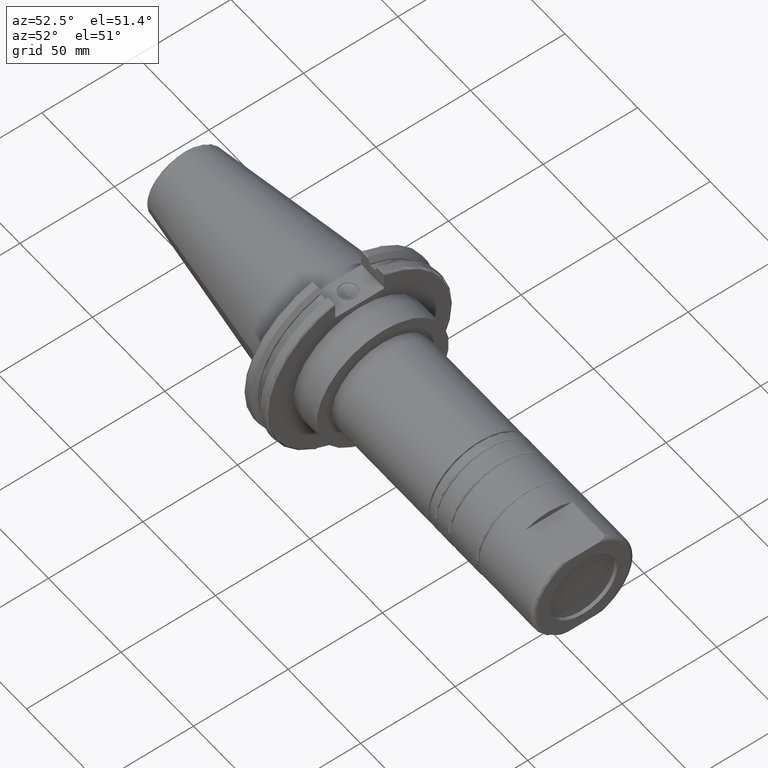
[diagram: clean part render]
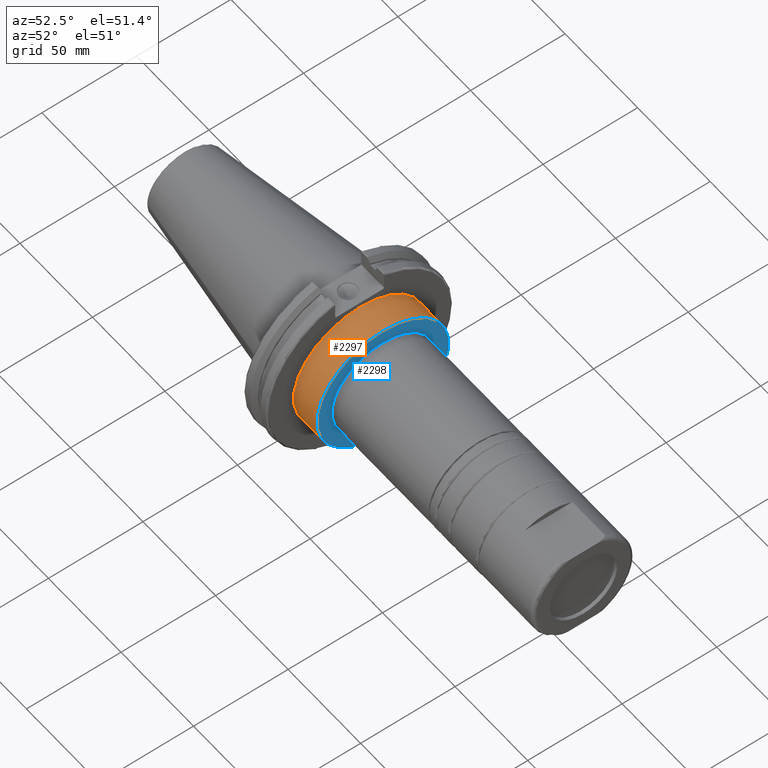
[diagram: same view with the hole feature highlighted: cylindrical wall and planar end face, labeled with their STEP entity ids]
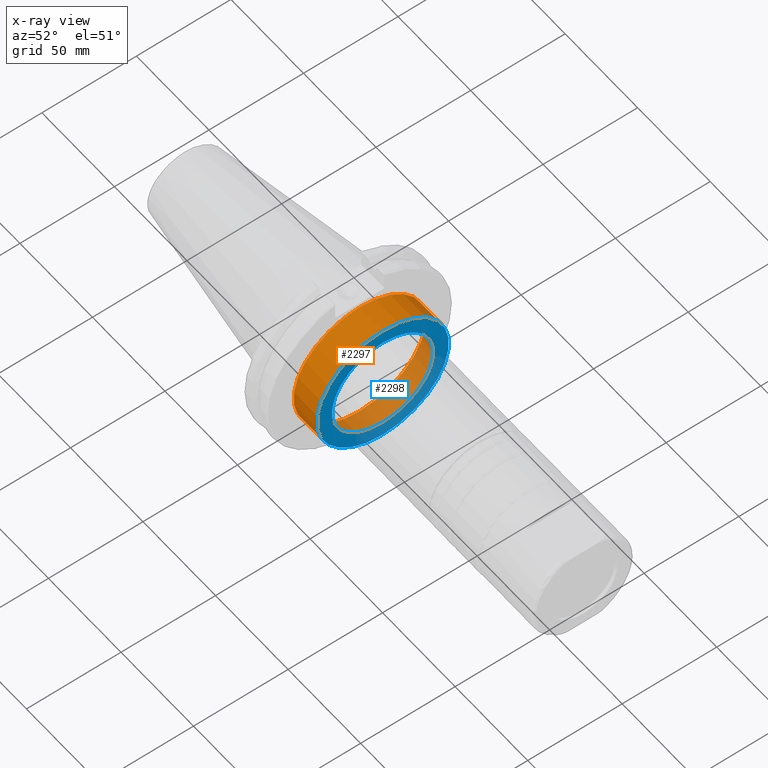
[diagram: x-ray of the same camera — body ghosted, the hole faces saturated]
A machine part, auxiliary view. The highlighted faces form one hole feature of diameter 69.85 mm: the cylindrical wall (entity #2297, orange) and its adjacent planar end face (entity #2298, blue) — they share a circular edge in the B-rep.
The next image is the same camera in x-ray (body ghosted, the hole faces saturated) — the bore reads through the body.
Wall:
#577=CIRCLE('',#2612,34.925);
#578=CIRCLE('',#2613,34.925);
#710=CYLINDRICAL_SURFACE('',#2611,34.925);
#741=FACE_OUTER_BOUND('',#854,.T.);
#854=EDGE_LOOP('',(#1713,#1714,#1715,#1716));
#988=LINE('',#3744,#1120);
#1120=VECTOR('',#2947,34.925);
#1252=VERTEX_POINT('',#3741);
#1253=VERTEX_POINT('',#3743);
#1435=EDGE_CURVE('',#1252,#1252,#577,.T.);
#1436=EDGE_CURVE('',#1252,#1253,#988,.T.);
#1437=EDGE_CURVE('',#1253,#1253,#578,.T.);
#1713=ORIENTED_EDGE('',*,*,#1435,.F.);
#1714=ORIENTED_EDGE('',*,*,#1436,.T.);
#1715=ORIENTED_EDGE('',*,*,#1437,.F.);
#1716=ORIENTED_EDGE('',*,*,#1436,.F.);
#2297=ADVANCED_FACE('',(#741),#710,.T.);
#2611=AXIS2_PLACEMENT_3D('',#3740,#2943,#2944);
#2612=AXIS2_PLACEMENT_3D('',#3742,#2945,#2946);
#2613=AXIS2_PLACEMENT_3D('',#3745,#2948,#2949);
#2943=DIRECTION('center_axis',(1.,0.,0.));
#2944=DIRECTION('ref_axis',(0.,0.,1.));
#2945=DIRECTION('center_axis',(1.,0.,0.));
#2946=DIRECTION('ref_axis',(0.,0.,-1.));
#2947=DIRECTION('',(-1.,0.,0.));
#2948=DIRECTION('center_axis',(-1.,0.,0.));
#2949=DIRECTION('ref_axis',(0.,0.,1.));
#3740=CARTESIAN_POINT('Origin',(27.025,0.,0.));
#3741=CARTESIAN_POINT('',(35.,4.27707894602213E-15,-34.925));
#3742=CARTESIAN_POINT('Origin',(35.,0.,0.));
#3743=CARTESIAN_POINT('',(19.05,4.27707894602213E-15,-34.925));
#3744=CARTESIAN_POINT('',(27.025,4.27707894602213E-15,-34.925));
#3745=CARTESIAN_POINT('Origin',(19.05,0.,0.));
End face:
#557=FACE_BOUND('',#856,.T.);
#577=CIRCLE('',#2612,34.925);
#579=CIRCLE('',#2615,26.925);
#742=FACE_OUTER_BOUND('',#855,.T.);
#855=EDGE_LOOP('',(#1717));
#856=EDGE_LOOP('',(#1718));
#1252=VERTEX_POINT('',#3741);
#1254=VERTEX_POINT('',#3747);
#1435=EDGE_CURVE('',#1252,#1252,#577,.T.);
#1438=EDGE_CURVE('',#1254,#1254,#579,.T.);
#1717=ORIENTED_EDGE('',*,*,#1435,.T.);
#1718=ORIENTED_EDGE('',*,*,#1438,.F.);
#2236=PLANE('',#2614);
#2298=ADVANCED_FACE('',(#742,#557),#2236,.T.);
#2612=AXIS2_PLACEMENT_3D('',#3742,#2945,#2946);
#2614=AXIS2_PLACEMENT_3D('',#3746,#2950,#2951);
#2615=AXIS2_PLACEMENT_3D('',#3748,#2952,#2953);
#2945=DIRECTION('center_axis',(1.,0.,0.));
#2946=DIRECTION('ref_axis',(0.,0.,-1.));
#2950=DIRECTION('center_axis',(1.,0.,0.));
#2951=DIRECTION('ref_axis',(0.,0.,-1.));
#2952=DIRECTION('center_axis',(1.,0.,0.));
#2953=DIRECTION('ref_axis',(0.,0.,-1.));
#3741=CARTESIAN_POINT('',(35.,4.27707894602213E-15,-34.925));
#3742=CARTESIAN_POINT('Origin',(35.,0.,0.));
#3746=CARTESIAN_POINT('Origin',(35.,0.,26.925));
#3747=CARTESIAN_POINT('',(35.,3.29736150670425E-15,-26.925));
#3748=CARTESIAN_POINT('Origin',(35.,0.,0.));